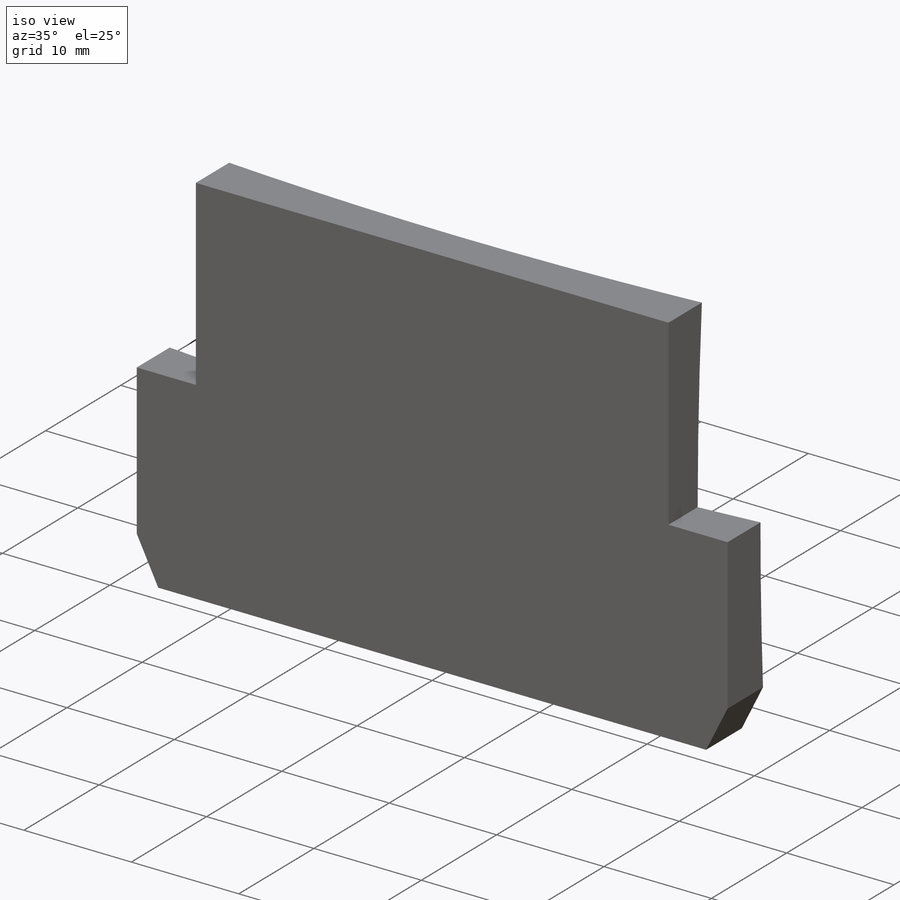
[diagram: iso view]
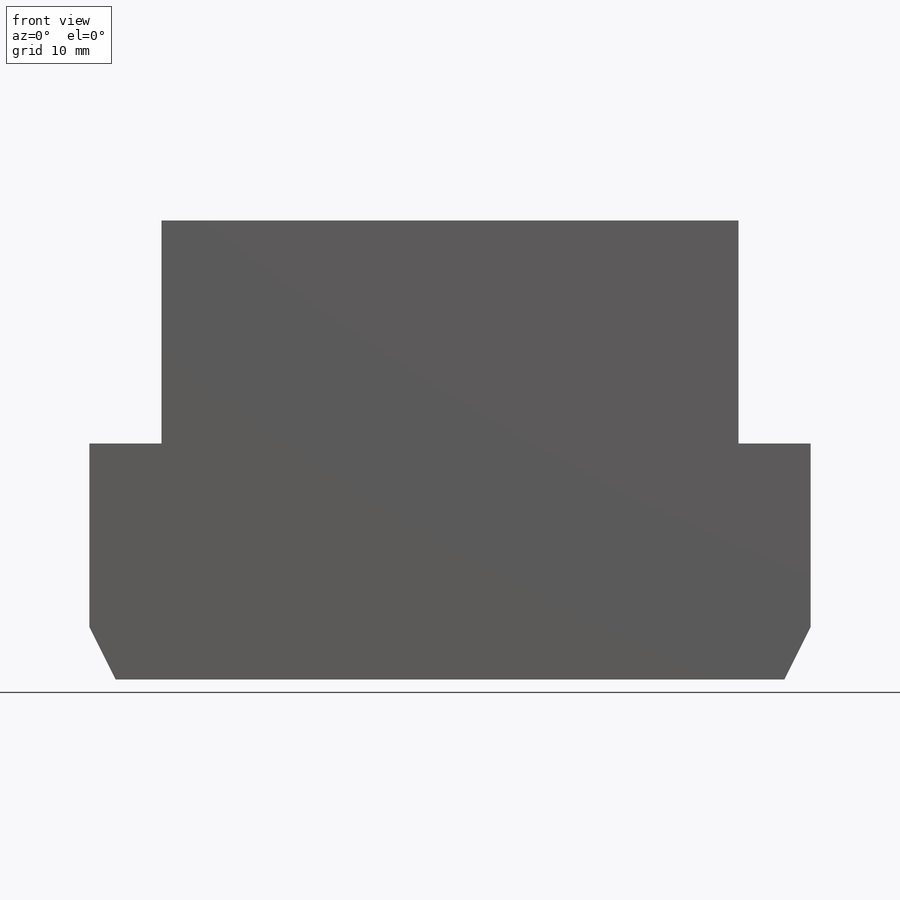
[diagram: front view]
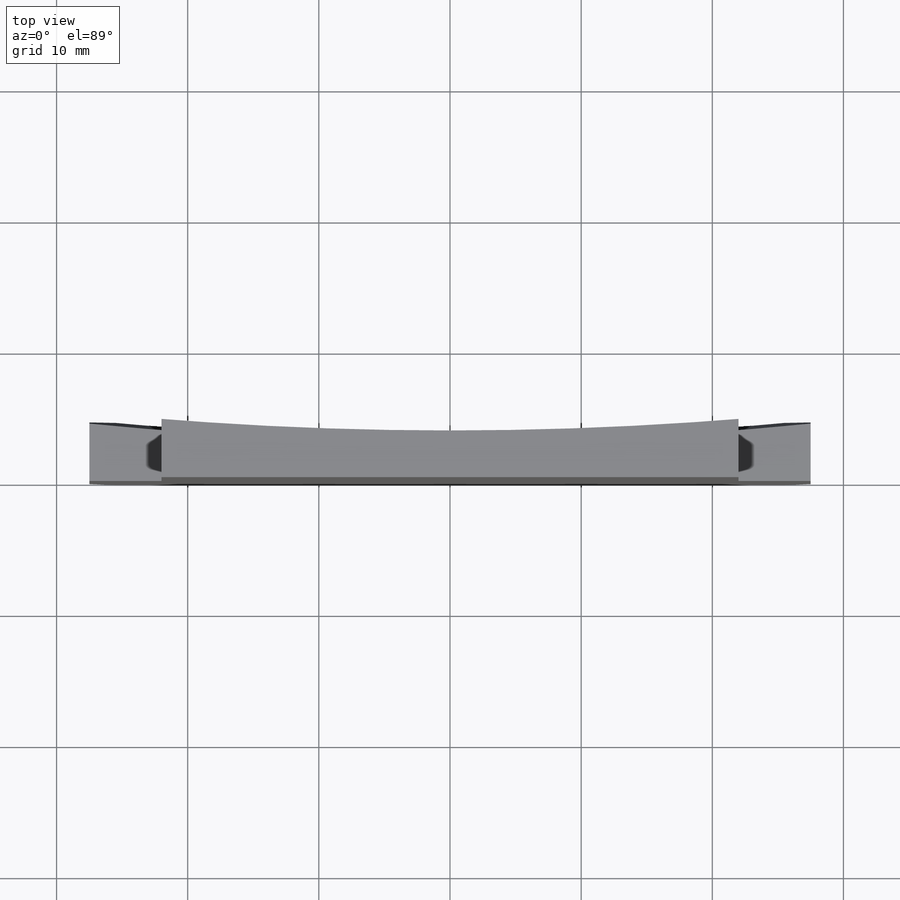
[diagram: top view]
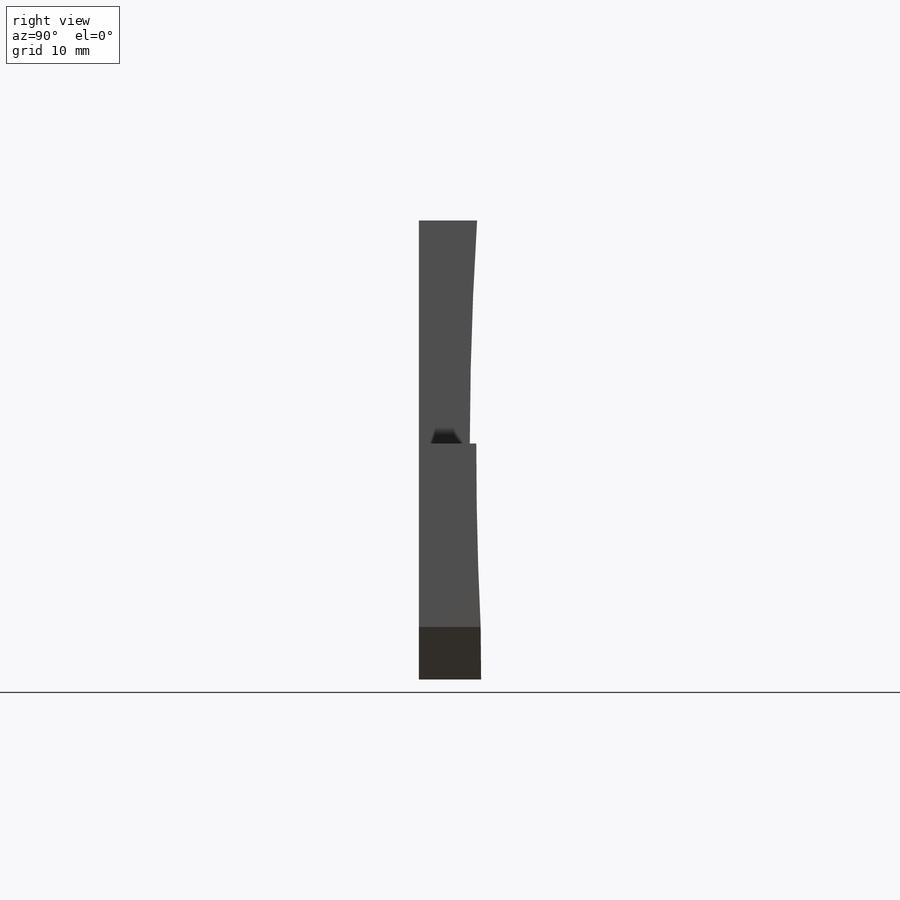
[diagram: right view]
SOLIDWORKS PART (.sldprt)
format: sldprt  version: not decoded by parser v0  size: 235,008 bytes
history: native  units: mm
features: sketch x117, chamfer x37, fillet x4, plane x3, material x1, extrude x1, cut_extrude x1 (+12 scaffold rows collapsed)
feature tree (176):
  scaffold x12  (default folders/planes/origin — collapsed)
  material  "Стекло"
  plane  "Спереди"
  plane  "Сверху"
  plane  "Справа"
  sketch  "Эскиз1"  dims[D1=35.0mm D2=55.0mm D3=27.5mm D4=17.5mm]
  extrude  "Вытянуть1"  Depth=8mm
  sketch  "Эскиз4"  dims[c1.D1=275.4mm c1.D2=278.4mm c1.D3=16.0mm c2.D1=360.0deg c2.D3=30.0mm c2.D4=1.0mm c2.D7=0.0mm]
  sketch  "Эскиз5"  dims[c1.D1=16.0mm c1.D2=4.0mm c1.D3=44.0mm c2.D1=0.5mm]
  cut_extrude  "Вырез-Вытянуть1"  [1 undecoded]
  fillet  "Скругление1"  Radius=0.5mm
  chamfer  "Фаска1"  Distance=0.4mm Angle=45deg
  fillet  "Фаска2"  Radius=0.07mm
  sketch  "Центр кривизны"  dims[D1=~415.928634mm D2=10.0mm]
  sketch  "Material_Int"
  sketch  "Material_Ext"
  sketch  "Surface"
  sketch  "Material_Int"
  sketch  "Material_Ext"
  chamfer  "OptisFaceAttribut_1"  [1 undecoded]
  sketch  "Surface"
  sketch  "Material_Int"
  sketch  "Material_Ext"
  chamfer  "OptisFaceAttribut_2"  [1 undecoded]
  sketch  "Surface"
  sketch  "Material_Int"
  sketch  "Material_Ext"
  chamfer  "OptisFaceAttribut_3"  [1 undecoded]
  sketch  "Surface"
  sketch  "Material_Int"
  sketch  "Material_Ext"
  chamfer  "OptisFaceAttribut_4"  [1 undecoded]
  sketch  "Surface"
  sketch  "Material_Int"
  sketch  "Material_Ext"
  chamfer  "OptisFaceAttribut_5"  [1 undecoded]
  sketch  "Surface"
  sketch  "Material_Int"
  sketch  "Material_Ext"
  chamfer  "OptisFaceAttribut_6"  [1 undecoded]
  sketch  "Surface"
  sketch  "Material_Int"
  sketch  "Material_Ext"
  chamfer  "OptisFaceAttribut_7"  [1 undecoded]
  sketch  "Surface"
  sketch  "Material_Int"
  sketch  "Material_Ext"
  chamfer  "OptisFaceAttribut_8"  [1 undecoded]
  sketch  "Surface"
  sketch  "Material_Int"
  sketch  "Material_Ext"
  chamfer  "OptisFaceAttribut_9"  [1 undecoded]
  sketch  "Surface"
  sketch  "Material_Int"
  sketch  "Material_Ext"
  chamfer  "OptisFaceAttribut_10"  [1 undecoded]
  sketch  "Surface"
  sketch  "Material_Int"
  sketch  "Material_Ext"
  chamfer  "OptisFaceAttribut_11"  [1 undecoded]
  sketch  "Surface"
  sketch  "Material_Int"
  sketch  "Material_Ext"
  chamfer  "OptisFaceAttribut_12"  [1 undecoded]
  sketch  "Surface"
  sketch  "Material_Int"
  sketch  "Material_Ext"
  chamfer  "OptisFaceAttribut_13"  [1 undecoded]
  sketch  "Surface"
  sketch  "Material_Int"
  sketch  "Material_Ext"
  chamfer  "OptisFaceAttribut_14"  [1 undecoded]
  sketch  "Surface"
  sketch  "Material_Int"
  sketch  "Material_Ext"
  chamfer  "OptisFaceAttribut_15"  [1 undecoded]
  sketch  "Surface"
  sketch  "Material_Int"
  sketch  "Material_Ext"
  chamfer  "OptisFaceAttribut_16"  [1 undecoded]
  sketch  "Surface"
  sketch  "Material_Int"
  sketch  "Material_Ext"
  chamfer  "OptisFaceAttribut_17"  [1 undecoded]
  sketch  "Surface"
  sketch  "Material_Int"
  sketch  "Material_Ext"
  chamfer  "OptisFaceAttribut_18"  [1 undecoded]
  sketch  "Surface"
  sketch  "Material_Int"
  sketch  "Material_Ext"
  chamfer  "OptisFaceAttribut_19"  [1 undecoded]
  sketch  "Surface"
  sketch  "Material_Int"
  sketch  "Material_Ext"
  chamfer  "OptisFaceAttribut_20"  [1 undecoded]
  sketch  "Surface"
  sketch  "Material_Int"
  sketch  "Material_Ext"
  chamfer  "OptisFaceAttribut_21"  [1 undecoded]
  sketch  "Surface"
  sketch  "Material_Int"
  sketch  "Material_Ext"
  chamfer  "OptisFaceAttribut_22"  [1 undecoded]
  sketch  "Surface"
  sketch  "Material_Int"
  sketch  "Material_Ext"
  chamfer  "OptisFaceAttribut_23"  [1 undecoded]
  sketch  "Surface"
  sketch  "Material_Int"
  sketch  "Material_Ext"
  chamfer  "OptisFaceAttribut_24"  [1 undecoded]
  sketch  "Surface"
  sketch  "Material_Int"
  sketch  "Material_Ext"
  chamfer  "OptisFaceAttribut_25"  [1 undecoded]
  sketch  "Surface"
  sketch  "Material_Int"
  sketch  "Material_Ext"
  chamfer  "OptisFaceAttribut_26"  [1 undecoded]
  sketch  "Surface"
  sketch  "Material_Int"
  sketch  "Material_Ext"
  chamfer  "OptisFaceAttribut_27"  [1 undecoded]
  sketch  "Surface"
  sketch  "Material_Int"
  sketch  "Material_Ext"
  chamfer  "OptisFaceAttribut_28"  [1 undecoded]
  sketch  "Surface"
  sketch  "Material_Int"
  sketch  "Material_Ext"
  chamfer  "OptisFaceAttribut_29"  [1 undecoded]
  sketch  "Surface"
  sketch  "Material_Int"
  sketch  "Material_Ext"
  chamfer  "OptisFaceAttribut_30"  [1 undecoded]
  sketch  "Surface"
  sketch  "Material_Int"
  sketch  "Material_Ext"
  chamfer  "OptisFaceAttribut_31"  [1 undecoded]
  sketch  "Surface"
  sketch  "Material_Int"
  sketch  "Material_Ext"
  chamfer  "OptisFaceAttribut_32"  [1 undecoded]
  sketch  "Surface"
  sketch  "Material_Int"
  sketch  "Material_Ext"
  chamfer  "OptisFaceAttribut_33"  [1 undecoded]
  sketch  "Surface"
  sketch  "Material_Int"
  sketch  "Material_Ext"
  chamfer  "OptisFaceAttribut_34"  [1 undecoded]
  sketch  "Surface"
  sketch  "Material_Int"
  sketch  "Material_Ext"
  chamfer  "OptisFaceAttribut_35"  [1 undecoded]
  sketch  "Surface"
  sketch  "Material_Int"
  sketch  "Material_Ext"
  chamfer  "OptisFaceAttribut_36"  [1 undecoded]
  sketch  "Surface"
  sketch  "Material_Int"
  sketch  "Material_Ext"
  fillet  "Фаска3"  Radius=2mm
  fillet  "Фаска4"  Radius=4mm
decode coverage: 10 of 160 modeling features carry decoded parameters
note: ~ marks probable driven/reference dimensions
note: 37 parameter values undecoded
summary: no parameter record found for 37 features
note: suppression state not decoded; provenance and decode notes live in map.json
